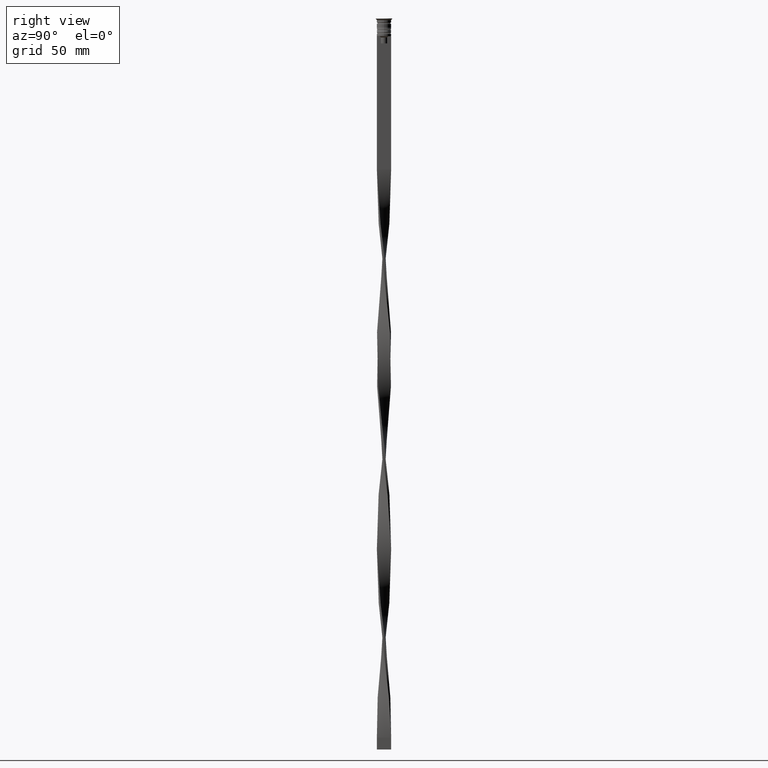
[diagram: clean part render]
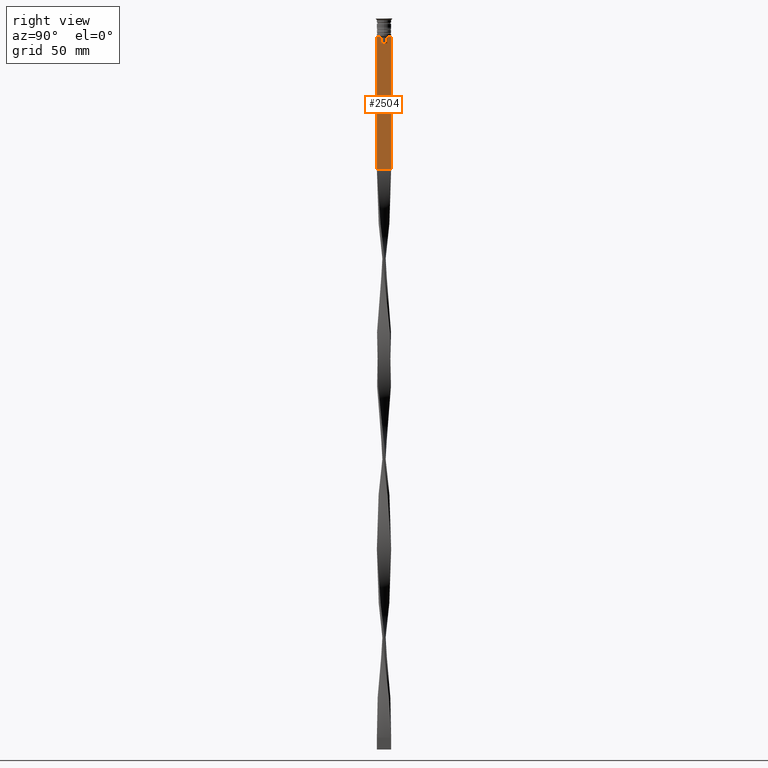
[diagram: same view with one face highlighted and labeled with its STEP entity id]
A machine part, right view. The second image highlights one B-rep face of the part: STEP entity #2504.
In plain terms, the highlighted planar face has unit normal (-1, 0, 0).
Its self-contained STEP definition (entity closure, byte-faithful):
#31 = ORIENTED_EDGE ( 'NONE', *, *, #1606, .T. ) ;
#45 = EDGE_CURVE ( 'NONE', #2941, #1324, #3919, .T. ) ;
#117 = DIRECTION ( 'NONE',  ( 0.000000000000000000, -1.000000000000000000, 0.000000000000000000 ) ) ;
#183 = VECTOR ( 'NONE', #832, 1000.000000000000000 ) ;
#221 = CARTESIAN_POINT ( 'NONE',  ( 0.4999999999999998890, -1.659011726860414093, -7.667884880598472286 ) ) ;
#239 = EDGE_CURVE ( 'NONE', #2162, #951, #1663, .T. ) ;
#253 = ORIENTED_EDGE ( 'NONE', *, *, #2253, .T. ) ;
#320 = EDGE_CURVE ( 'NONE', #3843, #2730, #1380, .T. ) ;
#349 = PLANE ( 'NONE',  #1814 ) ;
#434 = LINE ( 'NONE', #2567, #3179 ) ;
#667 = CARTESIAN_POINT ( 'NONE',  ( 0.4999999999999998890, -2.856571371417139904, -7.500000000000000000 ) ) ;
#696 = LINE ( 'NONE', #3415, #2508 ) ;
#724 = LINE ( 'NONE', #3106, #984 ) ;
#739 = ORIENTED_EDGE ( 'NONE', *, *, #900, .F. ) ;
#742 = CARTESIAN_POINT ( 'NONE',  ( 0.4999999999999998890, -3.000000000000000000, -7.500000000000000000 ) ) ;
#760 = CARTESIAN_POINT ( 'NONE',  ( 0.4999999999999998890, -3.000000000000000000, -7.500000000000000000 ) ) ;
#817 = ORIENTED_EDGE ( 'NONE', *, *, #239, .T. ) ;
#825 = LINE ( 'NONE', #2269, #2199 ) ;
#828 = VERTEX_POINT ( 'NONE', #3770 ) ;
#832 = DIRECTION ( 'NONE',  ( 0.000000000000000000, -1.000000000000000000, 0.000000000000000000 ) ) ;
#857 = CARTESIAN_POINT ( 'NONE',  ( 0.4999999999999998890, -1.307669683062199439, -8.000000000000000000 ) ) ;
#861 = VECTOR ( 'NONE', #3561, 1000.000000000000000 ) ;
#863 = CARTESIAN_POINT ( 'NONE',  ( 0.4999999999999998890, 2.856571371417139904, -7.500000000000000000 ) ) ;
#900 = EDGE_CURVE ( 'NONE', #828, #2071, #434, .T. ) ;
#951 = VERTEX_POINT ( 'NONE', #1985 ) ;
#984 = VECTOR ( 'NONE', #2260, 1000.000000000000000 ) ;
#1128 = ORIENTED_EDGE ( 'NONE', *, *, #45, .T. ) ;
#1190 = CARTESIAN_POINT ( 'NONE',  ( 0.4999999999999998890, -1.833030277982335754, -7.500000000000000000 ) ) ;
#1263 = CARTESIAN_POINT ( 'NONE',  ( 0.4999999999999998890, 1.307669683062199439, 0.000000000000000000 ) ) ;
#1292 = VERTEX_POINT ( 'NONE', #1190 ) ;
#1301 = VECTOR ( 'NONE', #2485, 1000.000000000000000 ) ;
#1324 = VERTEX_POINT ( 'NONE', #2654 ) ;
#1349 = CARTESIAN_POINT ( 'NONE',  ( 0.4999999999999998890, -3.000000000000000000, -63.50000000000000000 ) ) ;
#1380 = LINE ( 'NONE', #1674, #183 ) ;
#1439 = VECTOR ( 'NONE', #1635, 1000.000000000000000 ) ;
#1488 = CARTESIAN_POINT ( 'NONE',  ( 0.4999999999999998890, 1.307669683062199439, -10.49999999999999822 ) ) ;
#1559 = DIRECTION ( 'NONE',  ( 0.000000000000000000, 0.000000000000000000, 1.000000000000000000 ) ) ;
#1606 = EDGE_CURVE ( 'NONE', #2730, #2562, #696, .T. ) ;
#1635 = DIRECTION ( 'NONE',  ( 0.000000000000000000, -1.000000000000000000, 0.000000000000000000 ) ) ;
#1643 = DIRECTION ( 'NONE',  ( 0.000000000000000000, 0.000000000000000000, -1.000000000000000000 ) ) ;
#1663 = LINE ( 'NONE', #2333, #3884 ) ;
#1674 = CARTESIAN_POINT ( 'NONE',  ( 0.4999999999999998890, -3.000000000000000000, -7.500000000000000000 ) ) ;
#1708 = CARTESIAN_POINT ( 'NONE',  ( 0.4999999999999998890, -1.833030277982335754, -7.500000000000000000 ) ) ;
#1814 = AXIS2_PLACEMENT_3D ( 'NONE', #2537, #1909, #1559 ) ;
#1833 = EDGE_CURVE ( 'NONE', #2562, #2071, #2893, .T. ) ;
#1892 = ORIENTED_EDGE ( 'NONE', *, *, #3334, .T. ) ;
#1905 = DIRECTION ( 'NONE',  ( 0.000000000000000000, 0.000000000000000000, -1.000000000000000000 ) ) ;
#1909 = DIRECTION ( 'NONE',  ( -1.000000000000000000, 0.000000000000000000, 0.000000000000000000 ) ) ;
#1914 = CARTESIAN_POINT ( 'NONE',  ( 0.4999999999999998890, -1.307669683062199439, -10.49999999999999822 ) ) ;
#1985 = CARTESIAN_POINT ( 'NONE',  ( 0.4999999999999998890, -1.307669683062199439, -8.000000000000000000 ) ) ;
#2007 = CARTESIAN_POINT ( 'NONE',  ( 0.4999999999999998890, 1.833030277982335754, -7.500000000000000000 ) ) ;
#2062 = VERTEX_POINT ( 'NONE', #1488 ) ;
#2071 = VERTEX_POINT ( 'NONE', #2715 ) ;
#2162 = VERTEX_POINT ( 'NONE', #1914 ) ;
#2199 = VECTOR ( 'NONE', #3470, 1000.000000000000000 ) ;
#2253 = EDGE_CURVE ( 'NONE', #3586, #2941, #724, .T. ) ;
#2260 = DIRECTION ( 'NONE',  ( 0.000000000000000000, -1.000000000000000000, 0.000000000000000000 ) ) ;
#2269 = CARTESIAN_POINT ( 'NONE',  ( 0.4999999999999998890, -3.000000000000000000, -7.500000000000000000 ) ) ;
#2333 = CARTESIAN_POINT ( 'NONE',  ( 0.4999999999999998890, -1.307669683062199439, 0.000000000000000000 ) ) ;
#2485 = DIRECTION ( 'NONE',  ( 0.000000000000000000, 0.000000000000000000, -1.000000000000000000 ) ) ;
#2494 = CARTESIAN_POINT ( 'NONE',  ( 0.4999999999999998890, 1.307669683062199439, -8.000000000000000000 ) ) ;
#2504 = ADVANCED_FACE ( 'NONE', ( #3400 ), #349, .F. ) ;
#2508 = VECTOR ( 'NONE', #1905, 1000.000000000000000 ) ;
#2537 = CARTESIAN_POINT ( 'NONE',  ( 0.4999999999999998890, -3.000000000000000000, -1.417237469701779329 ) ) ;
#2562 = VERTEX_POINT ( 'NONE', #3101 ) ;
#2567 = CARTESIAN_POINT ( 'NONE',  ( 0.4999999999999998890, 3.000000000000000000, -1.417237469701779329 ) ) ;
#2613 = CARTESIAN_POINT ( 'NONE',  ( 0.4999999999999998890, 1.484355510416485835, -7.834966642958598015 ) ) ;
#2654 = CARTESIAN_POINT ( 'NONE',  ( 0.4999999999999998890, 1.307669683062199439, -8.000000000000000000 ) ) ;
#2689 = ORIENTED_EDGE ( 'NONE', *, *, #320, .T. ) ;
#2715 = CARTESIAN_POINT ( 'NONE',  ( 0.4999999999999998890, 3.000000000000000000, -63.50000000000000000 ) ) ;
#2725 = CARTESIAN_POINT ( 'NONE',  ( 0.4999999999999998890, 1.833030277982335754, -7.500000000000000000 ) ) ;
#2730 = VERTEX_POINT ( 'NONE', #760 ) ;
#2837 = ORIENTED_EDGE ( 'NONE', *, *, #3329, .T. ) ;
#2887 = DIRECTION ( 'NONE',  ( -0.000000000000000000, -0.000000000000000000, 1.000000000000000000 ) ) ;
#2893 = LINE ( 'NONE', #1349, #861 ) ;
#2941 = VERTEX_POINT ( 'NONE', #2725 ) ;
#2959 = ORIENTED_EDGE ( 'NONE', *, *, #3655, .T. ) ;
#3101 = CARTESIAN_POINT ( 'NONE',  ( 0.4999999999999998890, -3.000000000000000000, -63.50000000000000000 ) ) ;
#3105 = LINE ( 'NONE', #1263, #1301 ) ;
#3106 = CARTESIAN_POINT ( 'NONE',  ( 0.4999999999999998890, -3.000000000000000000, -7.500000000000000000 ) ) ;
#3179 = VECTOR ( 'NONE', #1643, 1000.000000000000000 ) ;
#3329 = EDGE_CURVE ( 'NONE', #1292, #3843, #825, .T. ) ;
#3334 = EDGE_CURVE ( 'NONE', #2062, #2162, #3491, .T. ) ;
#3387 = B_SPLINE_CURVE_WITH_KNOTS ( 'NONE', 3,
 ( #857, #3531, #221, #1708 ),
 .UNSPECIFIED., .F., .F.,
 ( 4, 4 ),
 ( 0.007225659348748082224, 0.007950554640278054835 ),
 .UNSPECIFIED. ) ;
#3400 = FACE_OUTER_BOUND ( 'NONE', #3597, .T. ) ;
#3415 = CARTESIAN_POINT ( 'NONE',  ( 0.4999999999999998890, -3.000000000000000000, -1.417237469701779329 ) ) ;
#3421 = LINE ( 'NONE', #742, #1439 ) ;
#3470 = DIRECTION ( 'NONE',  ( 0.000000000000000000, -1.000000000000000000, 0.000000000000000000 ) ) ;
#3491 = LINE ( 'NONE', #3839, #3544 ) ;
#3509 = CARTESIAN_POINT ( 'NONE',  ( 0.4999999999999998890, 1.659046061654642967, -7.667851756010362507 ) ) ;
#3531 = CARTESIAN_POINT ( 'NONE',  ( 0.4999999999999998890, -1.484307477388859153, -7.835011508197190722 ) ) ;
#3544 = VECTOR ( 'NONE', #117, 1000.000000000000000 ) ;
#3561 = DIRECTION ( 'NONE',  ( 0.000000000000000000, 1.000000000000000000, 0.000000000000000000 ) ) ;
#3586 = VERTEX_POINT ( 'NONE', #863 ) ;
#3597 = EDGE_LOOP ( 'NONE', ( #253, #1128, #3674, #1892, #817, #2959, #2837, #2689, #31, #3648, #739, #3695 ) ) ;
#3648 = ORIENTED_EDGE ( 'NONE', *, *, #1833, .T. ) ;
#3655 = EDGE_CURVE ( 'NONE', #951, #1292, #3387, .T. ) ;
#3674 = ORIENTED_EDGE ( 'NONE', *, *, #3819, .T. ) ;
#3695 = ORIENTED_EDGE ( 'NONE', *, *, #3875, .T. ) ;
#3770 = CARTESIAN_POINT ( 'NONE',  ( 0.4999999999999998890, 3.000000000000000000, -7.500000000000000000 ) ) ;
#3819 = EDGE_CURVE ( 'NONE', #1324, #2062, #3105, .T. ) ;
#3839 = CARTESIAN_POINT ( 'NONE',  ( 0.4999999999999998890, 1.399999999999997691, -10.49999999999999822 ) ) ;
#3843 = VERTEX_POINT ( 'NONE', #667 ) ;
#3875 = EDGE_CURVE ( 'NONE', #828, #3586, #3421, .T. ) ;
#3884 = VECTOR ( 'NONE', #2887, 1000.000000000000000 ) ;
#3919 = B_SPLINE_CURVE_WITH_KNOTS ( 'NONE', 3,
 ( #2007, #3509, #2613, #2494 ),
 .UNSPECIFIED., .F., .F.,
 ( 4, 4 ),
 ( 0.003278537493109848298, 0.004003794023484941178 ),
 .UNSPECIFIED. ) ;